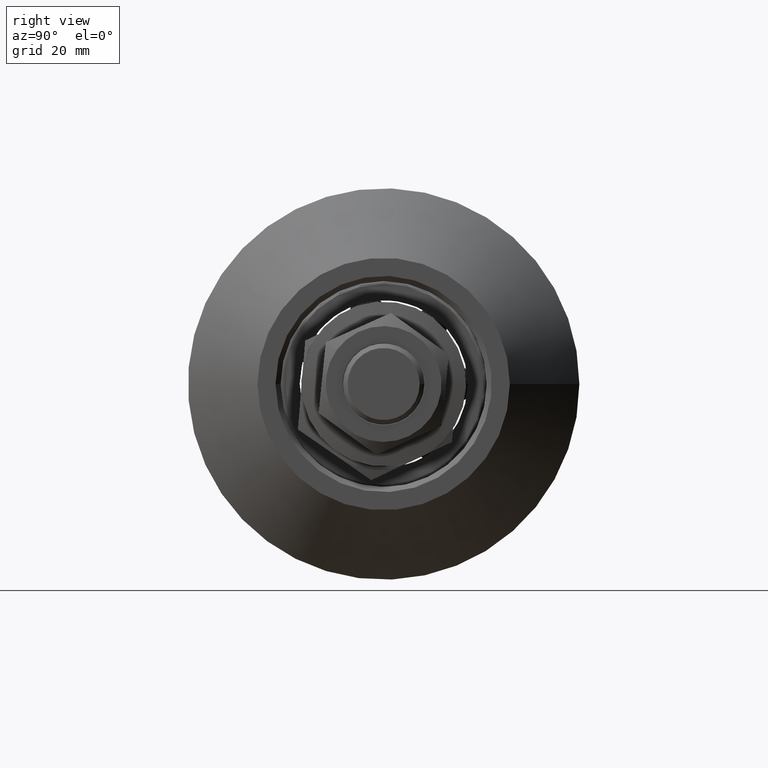
[diagram: clean part render]
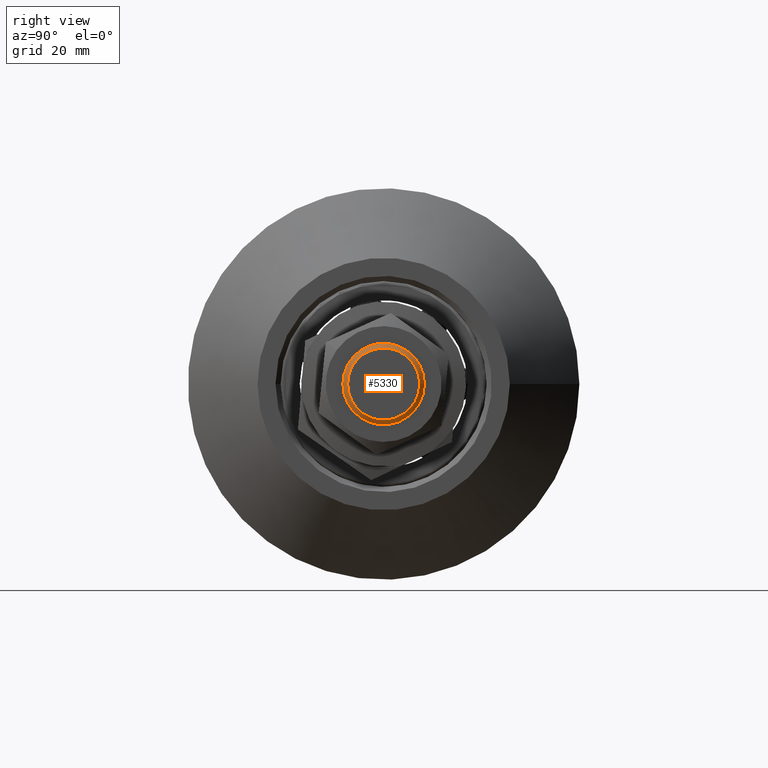
[diagram: same view with one face highlighted and labeled with its STEP entity id]
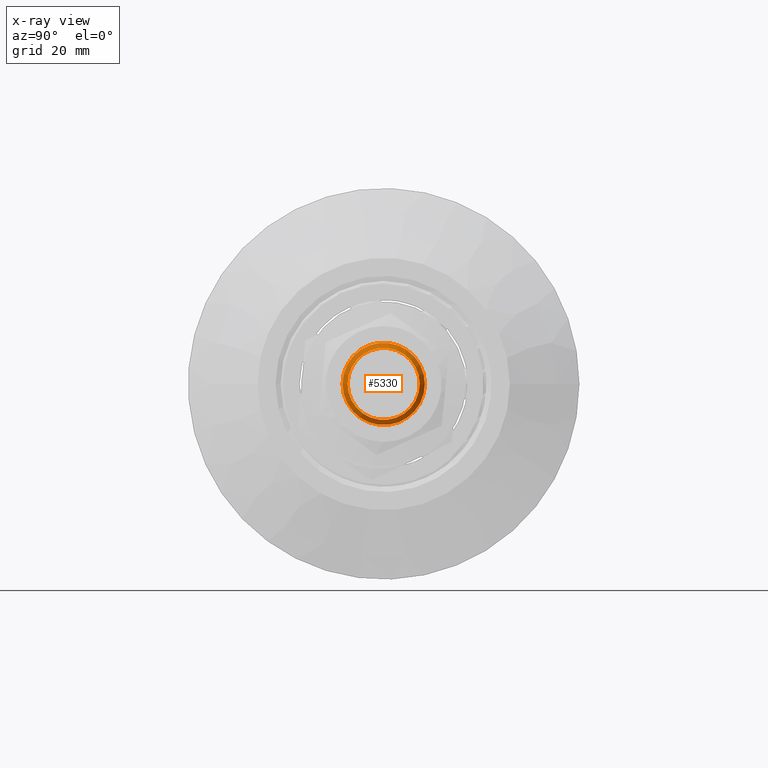
[diagram: x-ray of the same camera — body ghosted, the highlighted face saturated]
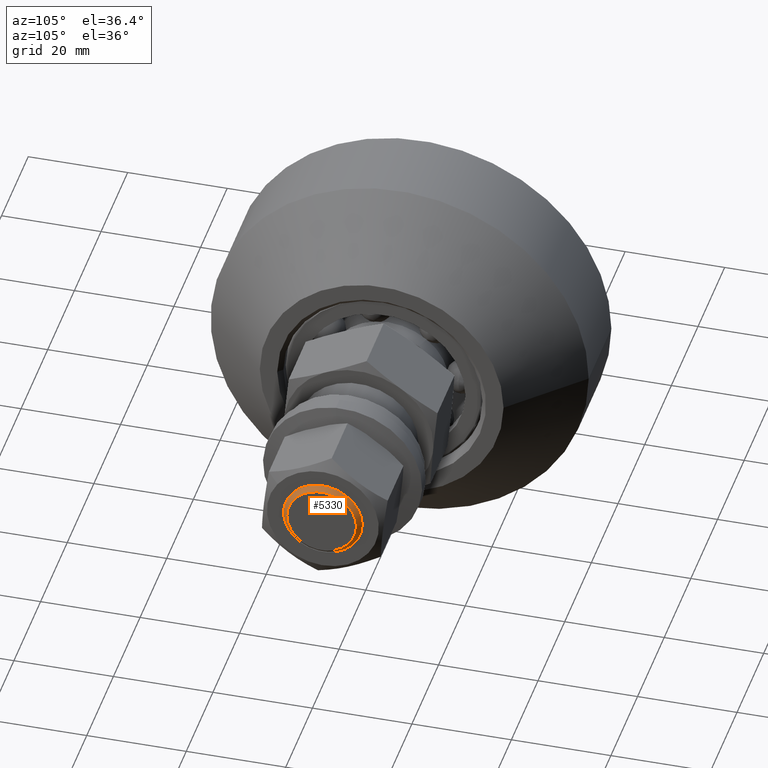
[diagram: same view with one face highlighted and labeled with its STEP entity id]
A machine part, right view. The second image highlights one B-rep face of the part: STEP entity #5330.
The next image is the same camera in x-ray: the body ghosted, the highlighted face saturated — about 0% of this face is hidden behind the body in this view.
A second angle (auxiliary view) of the same face is appended — the face is thin or edge-on in the first view.
In plain terms, the highlighted conical surface has half-angle 45 deg.
Its self-contained STEP definition (entity closure, byte-faithful):
#598=FACE_OUTER_BOUND('',#897,.T.);
#897=EDGE_LOOP('',(#3600,#3601,#3602,#3603,#3604));
#1230=LINE('',#8051,#1548);
#1548=VECTOR('',#6475,7.50000000000001);
#1866=CIRCLE('',#5840,7.00000000000001);
#1867=CIRCLE('',#5841,8.00000000000001);
#1868=CIRCLE('',#5842,8.00000000000001);
#2179=VERTEX_POINT('',#8048);
#2180=VERTEX_POINT('',#8050);
#2181=VERTEX_POINT('',#8052);
#2751=EDGE_CURVE('',#2179,#2179,#1866,.T.);
#2752=EDGE_CURVE('',#2179,#2180,#1230,.T.);
#2753=EDGE_CURVE('',#2180,#2181,#1867,.T.);
#2754=EDGE_CURVE('',#2181,#2180,#1868,.T.);
#3600=ORIENTED_EDGE('',*,*,#2751,.T.);
#3601=ORIENTED_EDGE('',*,*,#2752,.T.);
#3602=ORIENTED_EDGE('',*,*,#2753,.T.);
#3603=ORIENTED_EDGE('',*,*,#2754,.T.);
#3604=ORIENTED_EDGE('',*,*,#2752,.F.);
#5298=CONICAL_SURFACE('',#5839,7.5,0.78539816339745);
#5330=ADVANCED_FACE('',(#598),#5298,.T.);
#5839=AXIS2_PLACEMENT_3D('',#8047,#6471,#6472);
#5840=AXIS2_PLACEMENT_3D('',#8049,#6473,#6474);
#5841=AXIS2_PLACEMENT_3D('',#8053,#6476,#6477);
#5842=AXIS2_PLACEMENT_3D('',#8054,#6478,#6479);
#6471=DIRECTION('center_axis',(-1.,0.,0.));
#6472=DIRECTION('ref_axis',(0.,-1.,0.));
#6473=DIRECTION('center_axis',(-1.,0.,0.));
#6474=DIRECTION('ref_axis',(0.,-1.,0.));
#6475=DIRECTION('',(-0.707106781186546,0.707106781186549,8.65956056235495E-17));
#6476=DIRECTION('center_axis',(1.,0.,0.));
#6477=DIRECTION('ref_axis',(0.,-1.,0.));
#6478=DIRECTION('center_axis',(1.,0.,0.));
#6479=DIRECTION('ref_axis',(0.,-1.,0.));
#8047=CARTESIAN_POINT('Origin',(92.5,0.,0.));
#8048=CARTESIAN_POINT('',(93.,7.00000000000001,-8.57252759403148E-16));
#8049=CARTESIAN_POINT('Origin',(93.,0.,0.));
#8050=CARTESIAN_POINT('',(92.,8.00000000000001,9.79717439317883E-16));
#8051=CARTESIAN_POINT('',(92.5,7.5,9.18485099360515E-16));
#8052=CARTESIAN_POINT('',(92.,-8.00000000000001,-9.79717439317883E-16));
#8053=CARTESIAN_POINT('Origin',(92.,0.,0.));
#8054=CARTESIAN_POINT('Origin',(92.,0.,0.));